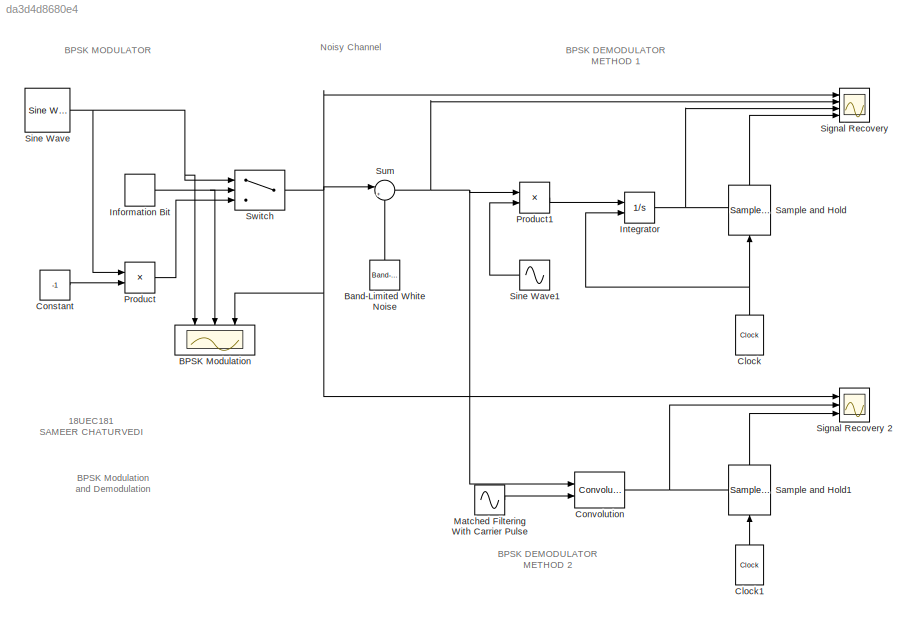
MODEL slx_da3d4d8680e4
KIND model
CONFIG AbsTol = auto
CONFIG EnableMultiTasking = off
CONFIG FixedStep = auto
CONFIG MaxStep = auto
CONFIG MinStep = auto
CONFIG RelTol = 1e-3
CONFIG SampleTimeConstraint = Unconstrained
CONFIG Solver = VariableStepAuto
CONFIG SolverName = VariableStepAuto
CONFIG StartTime = 0.0
CONFIG StopTime = 10.0
BLOCK [Scope] BPSK Modulation
  Floating = off
  NameLocation = left
  NumInputPorts = 3
  Ports = [3]
  ScopeSpecificationString = Simulink.scopes.TimeScopeBlockCfg('CurrentConfiguration', extmgr.ConfigurationSet(extmgr.Configuration('Core','General UI',true),extmgr.Configuration('Core','Source UI',true),extmgr.Configuration('Sources','WiredSimulink',true,'DataLoggingVariableName','ScopeData1'),extmgr.Configuration('Visuals','Time Domain',true,'SerializedDisplays',{struct('MinYLimReal','-1.25','MaxYLimReal','1.25','YLabelReal...<+2803ch>
BLOCK [Reference] Band-Limited White Noise  REF=simulink/Sources/Band-Limited
White Noise
  Ports = [0, 1]
  SourceBlock = simulink/Sources/Band-Limited\nWhite Noise
  SourceProductBaseCode = SL
  SourceType = Band-Limited White Noise.
BLOCK [Reference] Clock  REF=simulink_extras/Flip Flops/Clock
  NameLocation = right
  Ports = [0, 1]
  SourceBlock = simulink_extras/Flip Flops/Clock
  SourceProductBaseCode = SL
  SourceType = Digital clock
BLOCK [Reference] Clock1  REF=simulink_extras/Flip Flops/Clock
  NameLocation = right
  Ports = [0, 1]
  SourceBlock = simulink_extras/Flip Flops/Clock
  SourceProductBaseCode = SL
  SourceType = Digital clock
BLOCK [Constant] Constant
  Value = -1
BLOCK [Reference] Convolution  REF=dspsigops/Convolution
  Ports = [2, 1]
  SourceBlock = dspsigops/Convolution
  SourceProductBaseCode = DS
  SourceType = Convolution
BLOCK [DiscretePulseGenerator] Information Bit
  Ports = [0, 1]
  PulseType = Time based
  PulseWidth = 50
BLOCK [Integrator] Integrator
  ExternalReset = either
  Ports = [2, 1]
BLOCK [Sin] Matched Filtering With Carrier Pulse
  Frequency = 2*pi*2
  Ports = [0, 1]
  SampleTime = 0.001
BLOCK [Product] Product
  Ports = [2, 1]
BLOCK [Product] Product1
  Ports = [2, 1]
BLOCK [Reference] Sample and Hold  REF=dspsigops/Sample
and Hold
  NameLocation = right
  Ports = [1, 1, 0, 1]
  SourceBlock = dspsigops/Sample\nand Hold
  SourceProductBaseCode = DS
  SourceType = Sample and Hold
BLOCK [Reference] Sample and Hold1  REF=dspsigops/Sample
and Hold
  NameLocation = right
  Ports = [1, 1, 0, 1]
  SourceBlock = dspsigops/Sample\nand Hold
  SourceProductBaseCode = DS
  SourceType = Sample and Hold
BLOCK [Scope] Signal Recovery
  Floating = off
  NumInputPorts = 4
  Ports = [4]
  ScopeSpecificationString = Simulink.scopes.TimeScopeBlockCfg('CurrentConfiguration', extmgr.ConfigurationSet(extmgr.Configuration('Core','General UI',true),extmgr.Configuration('Core','Source UI',true),extmgr.Configuration('Sources','WiredSimulink',true),extmgr.Configuration('Visuals','Time Domain',true,'SerializedDisplays',{struct('MinYLimReal','-1.25','MaxYLimReal','1.25','YLabelReal','','MinYLimMag','0.00000','MaxYLimMag...<+3530ch>
BLOCK [Scope] Signal Recovery 2
  Floating = off
  NumInputPorts = 3
  Ports = [3]
  ScopeSpecificationString = Simulink.scopes.TimeScopeBlockCfg('CurrentConfiguration', extmgr.ConfigurationSet(extmgr.Configuration('Core','General UI',true),extmgr.Configuration('Core','Source UI',true),extmgr.Configuration('Sources','WiredSimulink',true,'DataLoggingVariableName','ScopeData2'),extmgr.Configuration('Visuals','Time Domain',true,'SerializedDisplays',{struct('MinYLimReal','-1.25','MaxYLimReal','1.25','YLabelReal...<+2836ch>
BLOCK [Reference] Sine Wave  REF=dspsrcs4/Sine Wave
  Ports = [0, 1]
  SourceBlock = dspsrcs4/Sine Wave
  SourceProductBaseCode = DS
  SourceType = Sine Wave
BLOCK [Sin] Sine Wave1
  Frequency = 2*pi*2
  NameLocation = top
  Ports = [0, 1]
  SampleTime = 0.001
BLOCK [Sum] Sum
  Inputs = |++
  Ports = [2, 1]
BLOCK [Switch] Switch
  Criteria = u2 > Threshold
  InputSameDT = off
  SaturateOnIntegerOverflow = off
  Threshold = 0.5
ANNOTATION (root): BPSK DEMODULATOR METHOD 1
ANNOTATION (root): BPSK DEMODULATOR METHOD 2
ANNOTATION (root): BPSK MODULATOR
ANNOTATION (root): Noisy Channel
ANNOTATION (root): 18UEC181 SAMEER CHATURVEDI
ANNOTATION (root): BPSK Modulation and Demodulation
LINE Band-Limited White Noise:1 -> Sum:2
LINE Clock1:1 -> Sample and Hold1:1
NET Clock:1 -> Integrator:2, Sample and Hold:1
LINE Constant:1 -> Product:2
NET Convolution:1 -> Sample and Hold1:trigger, Signal Recovery 2:2
NET Information Bit:1 -> BPSK Modulation:2, Switch:2
NET Integrator:1 -> Sample and Hold:trigger, Signal Recovery:3
LINE Matched Filtering With Carrier Pulse:1 -> Convolution:2
LINE Product1:1 -> Integrator:1
LINE Product:1 -> Switch:3
LINE Sample and Hold1:1 -> Signal Recovery 2:3
LINE Sample and Hold:1 -> Signal Recovery:4
LINE Sine Wave1:1 -> Product1:2
NET Sine Wave:1 -> BPSK Modulation:1, Product:1, Switch:1
NET Sum:1 -> Convolution:1, Product1:1, Signal Recovery:2
NET Switch:1 -> BPSK Modulation:3, Signal Recovery 2:1, Signal Recovery:1, Sum:1
note: NET lines group one-source signal fan-out (src -> all destinations, sorted); 1:1 wires keep LINE
